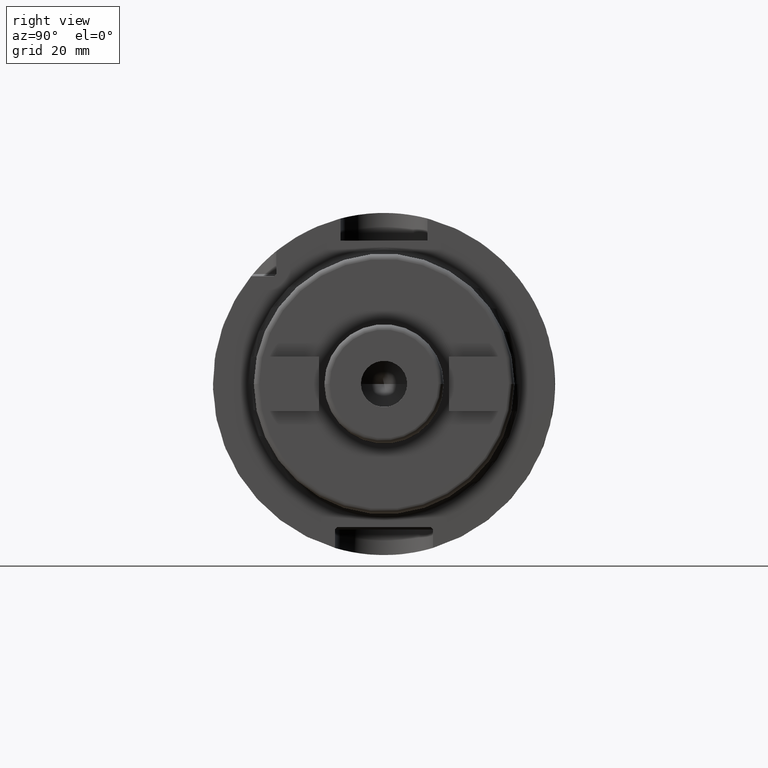
[diagram: clean part render]
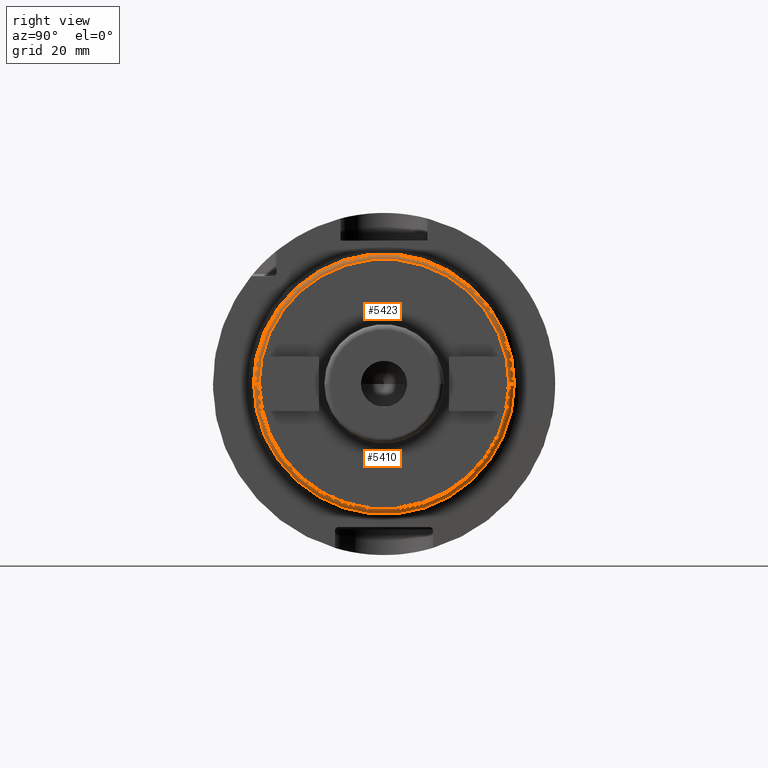
[diagram: same view with one multi-face feature highlighted, each face labeled with its STEP entity id]
A machine part, right view. The highlighted faces form ONE feature: a constant-radius fillet chain: 2 tangent blend faces with common blend radius 1 mm. The faces share edges in the B-rep.
Their STEP definitions:
[1] entity #5423 (Torus):
#1966=CARTESIAN_POINT('',(4.9E1,0.E0,0.E0));
#1967=DIRECTION('',(-1.E0,0.E0,0.E0));
#1968=DIRECTION('',(0.E0,-1.E0,0.E0));
#1969=AXIS2_PLACEMENT_3D('',#1966,#1967,#1968);
#1994=CARTESIAN_POINT('',(4.9E1,2.3E1,4.639996720179E-12));
#1995=DIRECTION('',(0.E0,2.017392329579E-13,-1.E0));
#1996=DIRECTION('',(0.E0,1.E0,2.017392329579E-13));
#1997=AXIS2_PLACEMENT_3D('',#1994,#1995,#1996);
#1999=CARTESIAN_POINT('',(4.9E1,-2.3E1,-4.637026873588E-12));
#2000=DIRECTION('',(0.E0,-2.016099960589E-13,1.E0));
#2001=DIRECTION('',(0.E0,-1.E0,-2.016099960589E-13));
#2002=AXIS2_PLACEMENT_3D('',#1999,#2000,#2001);
#2019=CARTESIAN_POINT('',(5.E1,0.E0,0.E0));
#2020=DIRECTION('',(-1.E0,0.E0,0.E0));
#2021=DIRECTION('',(0.E0,-1.E0,0.E0));
#2022=AXIS2_PLACEMENT_3D('',#2019,#2020,#2021);
#3198=CARTESIAN_POINT('',(4.9E1,2.4E1,-1.729603387974E-13));
#3199=VERTEX_POINT('',#3198);
#3200=CARTESIAN_POINT('',(4.9E1,-2.4E1,1.722095770641E-13));
#3201=VERTEX_POINT('',#3200);
#3206=CARTESIAN_POINT('',(5.E1,2.3E1,0.E0));
#3207=CARTESIAN_POINT('',(5.E1,-2.3E1,0.E0));
#3208=VERTEX_POINT('',#3206);
#3209=VERTEX_POINT('',#3207);
#5411=CARTESIAN_POINT('',(4.9E1,0.E0,0.E0));
#5412=DIRECTION('',(1.E0,0.E0,0.E0));
#5413=DIRECTION('',(0.E0,-9.999952560337E-1,-3.080245129131E-3));
#5414=AXIS2_PLACEMENT_3D('',#5411,#5412,#5413);
#5415=TOROIDAL_SURFACE('',#5414,2.3E1,1.E0);
#5416=ORIENTED_EDGE('',*,*,#5375,.T.);
#5417=ORIENTED_EDGE('',*,*,#5406,.T.);
#5419=ORIENTED_EDGE('',*,*,#5418,.F.);
#5420=ORIENTED_EDGE('',*,*,#5402,.F.);
#5421=EDGE_LOOP('',(#5416,#5417,#5419,#5420));
#5422=FACE_OUTER_BOUND('',#5421,.F.);
#5423=ADVANCED_FACE('',(#5422),#5415,.T.);
#1970=CIRCLE('',#1969,2.4E1);
#1998=CIRCLE('',#1997,1.E0);
#2003=CIRCLE('',#2002,1.E0);
#2023=CIRCLE('',#2022,2.3E1);
#5375=EDGE_CURVE('',#3201,#3199,#1970,.T.);
#5402=EDGE_CURVE('',#3201,#3209,#2003,.T.);
#5406=EDGE_CURVE('',#3199,#3208,#1998,.T.);
#5418=EDGE_CURVE('',#3209,#3208,#2023,.T.);
[2] entity #5410 (Torus):
#1989=CARTESIAN_POINT('',(4.9E1,0.E0,0.E0));
#1990=DIRECTION('',(-1.E0,0.E0,0.E0));
#1991=DIRECTION('',(0.E0,1.E0,0.E0));
#1992=AXIS2_PLACEMENT_3D('',#1989,#1990,#1991);
#1994=CARTESIAN_POINT('',(4.9E1,2.3E1,4.639996720179E-12));
#1995=DIRECTION('',(0.E0,2.017392329579E-13,-1.E0));
#1996=DIRECTION('',(0.E0,1.E0,2.017392329579E-13));
#1997=AXIS2_PLACEMENT_3D('',#1994,#1995,#1996);
#1999=CARTESIAN_POINT('',(4.9E1,-2.3E1,-4.637026873588E-12));
#2000=DIRECTION('',(0.E0,-2.016099960589E-13,1.E0));
#2001=DIRECTION('',(0.E0,-1.E0,-2.016099960589E-13));
#2002=AXIS2_PLACEMENT_3D('',#1999,#2000,#2001);
#2014=CARTESIAN_POINT('',(5.E1,0.E0,0.E0));
#2015=DIRECTION('',(-1.E0,0.E0,0.E0));
#2016=DIRECTION('',(0.E0,1.E0,0.E0));
#2017=AXIS2_PLACEMENT_3D('',#2014,#2015,#2016);
#3198=CARTESIAN_POINT('',(4.9E1,2.4E1,-1.729603387974E-13));
#3199=VERTEX_POINT('',#3198);
#3200=CARTESIAN_POINT('',(4.9E1,-2.4E1,1.722095770641E-13));
#3201=VERTEX_POINT('',#3200);
#3206=CARTESIAN_POINT('',(5.E1,2.3E1,0.E0));
#3207=CARTESIAN_POINT('',(5.E1,-2.3E1,0.E0));
#3208=VERTEX_POINT('',#3206);
#3209=VERTEX_POINT('',#3207);
#5396=CARTESIAN_POINT('',(4.9E1,0.E0,0.E0));
#5397=DIRECTION('',(1.E0,0.E0,0.E0));
#5398=DIRECTION('',(0.E0,9.999952560337E-1,3.080245129131E-3));
#5399=AXIS2_PLACEMENT_3D('',#5396,#5397,#5398);
#5400=TOROIDAL_SURFACE('',#5399,2.3E1,1.E0);
#5401=ORIENTED_EDGE('',*,*,#5391,.T.);
#5403=ORIENTED_EDGE('',*,*,#5402,.T.);
#5405=ORIENTED_EDGE('',*,*,#5404,.F.);
#5407=ORIENTED_EDGE('',*,*,#5406,.F.);
#5408=EDGE_LOOP('',(#5401,#5403,#5405,#5407));
#5409=FACE_OUTER_BOUND('',#5408,.F.);
#5410=ADVANCED_FACE('',(#5409),#5400,.T.);
#1993=CIRCLE('',#1992,2.4E1);
#1998=CIRCLE('',#1997,1.E0);
#2003=CIRCLE('',#2002,1.E0);
#2018=CIRCLE('',#2017,2.3E1);
#5391=EDGE_CURVE('',#3199,#3201,#1993,.T.);
#5402=EDGE_CURVE('',#3201,#3209,#2003,.T.);
#5404=EDGE_CURVE('',#3208,#3209,#2018,.T.);
#5406=EDGE_CURVE('',#3199,#3208,#1998,.T.);